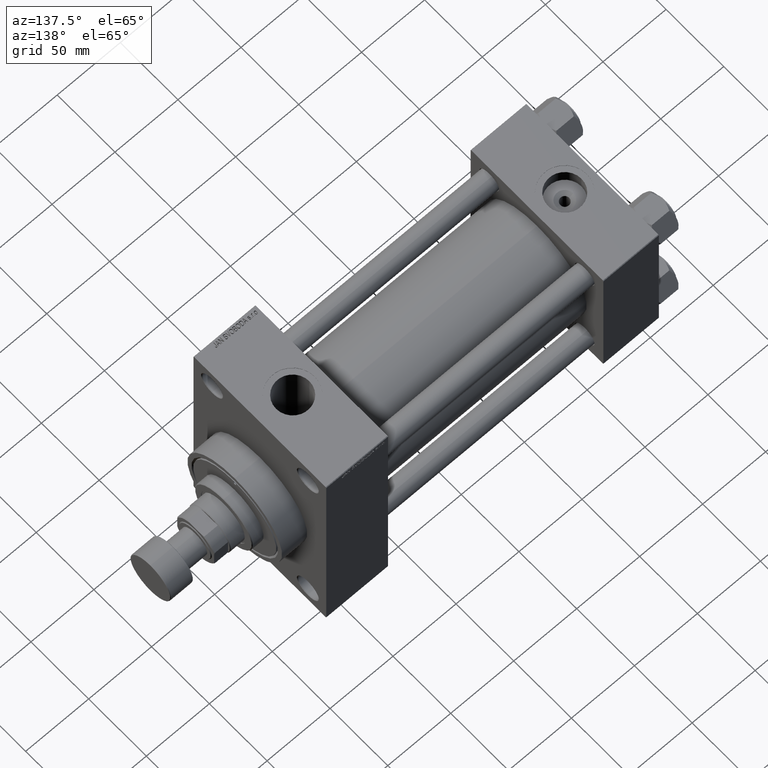
[diagram: clean part render]
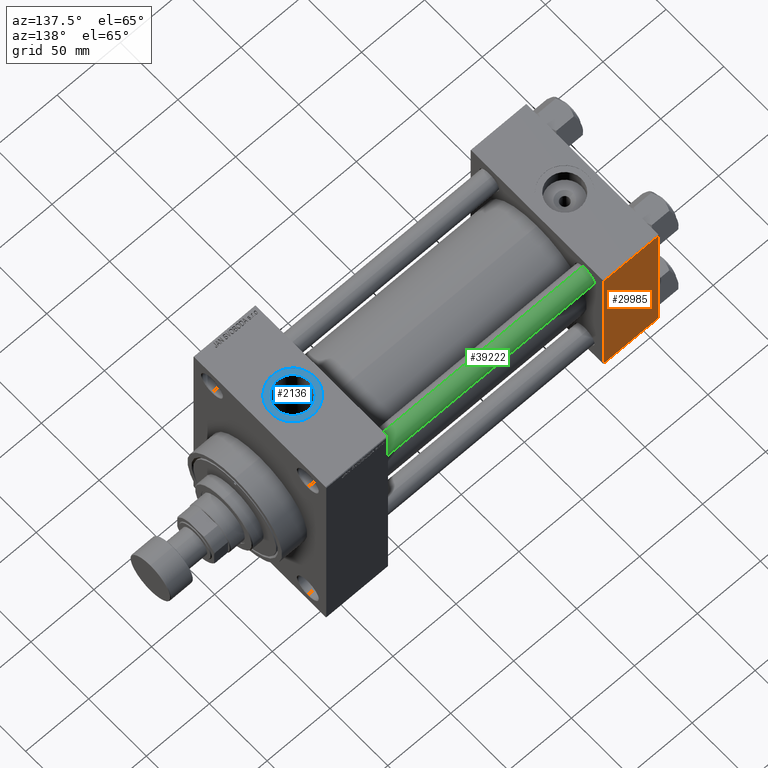
[diagram: same view with three faces highlighted in distinct colors, each labeled with its STEP entity id]
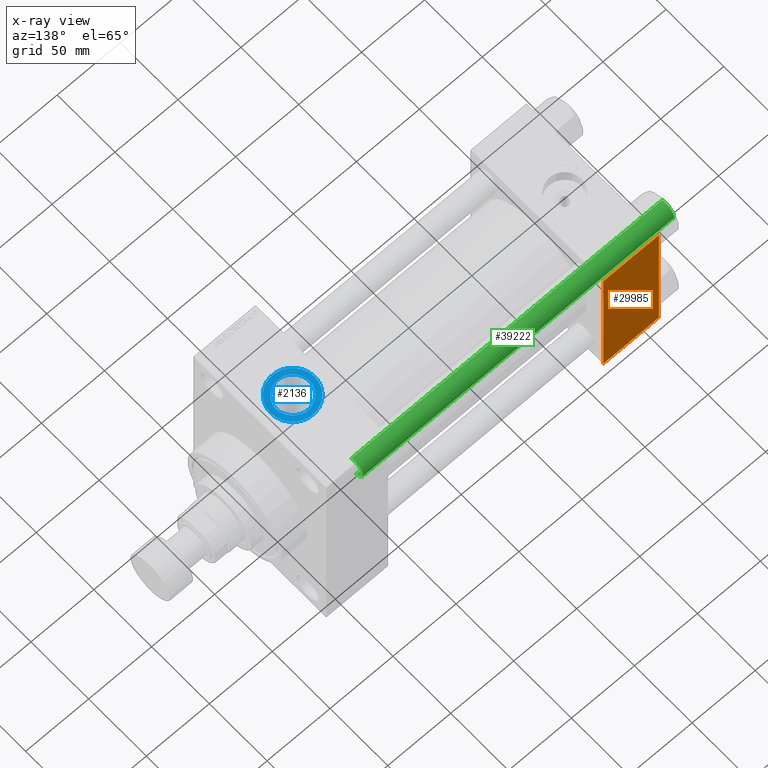
[diagram: x-ray of the same camera — body ghosted, the three highlighted faces saturated]
A machine part, auxiliary view with three faces highlighted in distinct colors.
The next image is the same camera in x-ray (body ghosted, the three faces saturated) — at least one of them is partly hidden behind the body in this view.
Their STEP definitions:

[orange] entity #29985 — the highlighted planar face has unit normal (0, 1, 0).
#2046 = CARTESIAN_POINT ( 'NONE',  ( 44.00000000000000000, 57.49999999999999289, 57.50000000000000711 ) ) ;
#3588 = VERTEX_POINT ( 'NONE', #25608 ) ;
#5001 = FACE_OUTER_BOUND ( 'NONE', #6183, .T. ) ;
#5596 = VECTOR ( 'NONE', #37071, 1000.000000000000000 ) ;
#6063 = EDGE_CURVE ( 'NONE', #24598, #18711, #32141, .T. ) ;
#6183 = EDGE_LOOP ( 'NONE', ( #45835, #47367, #31766, #36375 ) ) ;
#12938 = VECTOR ( 'NONE', #27477, 1000.000000000000000 ) ;
#12977 = CARTESIAN_POINT ( 'NONE',  ( 0.000000000000000000, 57.49999999999999289, 57.00000000000003553 ) ) ;
#13077 = DIRECTION ( 'NONE',  ( 0.000000000000000000, 0.000000000000000000, -1.000000000000000000 ) ) ;
#14054 = VECTOR ( 'NONE', #24882, 1000.000000000000000 ) ;
#15299 = CARTESIAN_POINT ( 'NONE',  ( 44.00000000000000000, 57.49999999999999289, 57.50000000000000711 ) ) ;
#15681 = EDGE_CURVE ( 'NONE', #45540, #24598, #30896, .T. ) ;
#16013 = CARTESIAN_POINT ( 'NONE',  ( 44.00000000000000000, 57.49999999999999289, 57.00000000000003553 ) ) ;
#18711 = VERTEX_POINT ( 'NONE', #47534 ) ;
#21702 = CARTESIAN_POINT ( 'NONE',  ( 0.000000000000000000, 57.49999999999999289, 57.50000000000000711 ) ) ;
#23586 = DIRECTION ( 'NONE',  ( 0.000000000000000000, -0.000000000000000000, 1.000000000000000000 ) ) ;
#24598 = VERTEX_POINT ( 'NONE', #16013 ) ;
#24882 = DIRECTION ( 'NONE',  ( -1.000000000000000000, 0.000000000000000000, 0.000000000000000000 ) ) ;
#25608 = CARTESIAN_POINT ( 'NONE',  ( 0.000000000000000000, 57.49999999999999289, -57.00000000000000711 ) ) ;
#27287 = PLANE ( 'NONE',  #28729 ) ;
#27477 = DIRECTION ( 'NONE',  ( 1.000000000000000000, 0.000000000000000000, 0.000000000000000000 ) ) ;
#28729 = AXIS2_PLACEMENT_3D ( 'NONE', #15299, #38234, #23586 ) ;
#29985 = ADVANCED_FACE ( 'NONE', ( #5001 ), #27287, .T. ) ;
#30896 = LINE ( 'NONE', #42354, #12938 ) ;
#31766 = ORIENTED_EDGE ( 'NONE', *, *, #43983, .F. ) ;
#32141 = LINE ( 'NONE', #2046, #32276 ) ;
#32215 = CARTESIAN_POINT ( 'NONE',  ( 44.00000000000000000, 57.49999999999999289, -57.00000000000000711 ) ) ;
#32276 = VECTOR ( 'NONE', #13077, 1000.000000000000000 ) ;
#35597 = EDGE_CURVE ( 'NONE', #18711, #3588, #47077, .T. ) ;
#36375 = ORIENTED_EDGE ( 'NONE', *, *, #15681, .T. ) ;
#36605 = LINE ( 'NONE', #21702, #5596 ) ;
#37071 = DIRECTION ( 'NONE',  ( 0.000000000000000000, 0.000000000000000000, -1.000000000000000000 ) ) ;
#38234 = DIRECTION ( 'NONE',  ( -0.000000000000000000, 1.000000000000000000, 0.000000000000000000 ) ) ;
#42354 = CARTESIAN_POINT ( 'NONE',  ( 44.00000000000000000, 57.49999999999999289, 57.00000000000003553 ) ) ;
#43983 = EDGE_CURVE ( 'NONE', #45540, #3588, #36605, .T. ) ;
#45540 = VERTEX_POINT ( 'NONE', #12977 ) ;
#45835 = ORIENTED_EDGE ( 'NONE', *, *, #6063, .T. ) ;
#47077 = LINE ( 'NONE', #32215, #14054 ) ;
#47367 = ORIENTED_EDGE ( 'NONE', *, *, #35597, .T. ) ;
#47534 = CARTESIAN_POINT ( 'NONE',  ( 44.00000000000000000, 57.49999999999999289, -57.00000000000000711 ) ) ;

[blue] entity #2136 — the highlighted planar face has unit normal (0, 0, 1).
#388 = ORIENTED_EDGE ( 'NONE', *, *, #24571, .T. ) ;
#927 = CARTESIAN_POINT ( 'NONE',  ( 220.5000000000000568, -8.717745516303449987E-15, 89.79999999999998295 ) ) ;
#973 = FACE_OUTER_BOUND ( 'NONE', #4264, .T. ) ;
#2136 = ADVANCED_FACE ( 'NONE', ( #11293, #973 ), #37897, .T. ) ;
#2818 = AXIS2_PLACEMENT_3D ( 'NONE', #19716, #35111, #31225 ) ;
#4264 = EDGE_LOOP ( 'NONE', ( #15349, #388 ) ) ;
#7847 = CARTESIAN_POINT ( 'NONE',  ( 238.0000000000000284, -1.086087741481131350E-14, 89.79999999999998295 ) ) ;
#8358 = VERTEX_POINT ( 'NONE', #45506 ) ;
#10519 = CIRCLE ( 'NONE', #47196, 17.49999999999998934 ) ;
#11217 = DIRECTION ( 'NONE',  ( 1.000000000000000000, 0.000000000000000000, 0.000000000000000000 ) ) ;
#11293 = FACE_BOUND ( 'NONE', #11704, .T. ) ;
#11369 = DIRECTION ( 'NONE',  ( 0.000000000000000000, 0.000000000000000000, 1.000000000000000000 ) ) ;
#11682 = EDGE_CURVE ( 'NONE', #8358, #42528, #15936, .T. ) ;
#11704 = EDGE_LOOP ( 'NONE', ( #17933, #17372 ) ) ;
#12247 = DIRECTION ( 'NONE',  ( 1.000000000000000000, 0.000000000000000000, -0.000000000000000000 ) ) ;
#12343 = CARTESIAN_POINT ( 'NONE',  ( 238.0000000000000284, -1.086087741481131350E-14, 89.79999999999998295 ) ) ;
#13804 = AXIS2_PLACEMENT_3D ( 'NONE', #12343, #11369, #27275 ) ;
#14156 = CARTESIAN_POINT ( 'NONE',  ( 238.0000000000000568, -1.086087741481131350E-14, 89.79999999999998295 ) ) ;
#14495 = CARTESIAN_POINT ( 'NONE',  ( 224.7800000000000580, -1.086087741481131350E-14, 89.79999999999998295 ) ) ;
#15349 = ORIENTED_EDGE ( 'NONE', *, *, #20822, .T. ) ;
#15936 = CIRCLE ( 'NONE', #46331, 13.22000000000000952 ) ;
#16907 = CIRCLE ( 'NONE', #13804, 17.49999999999998934 ) ;
#17372 = ORIENTED_EDGE ( 'NONE', *, *, #11682, .T. ) ;
#17933 = ORIENTED_EDGE ( 'NONE', *, *, #47105, .T. ) ;
#19716 = CARTESIAN_POINT ( 'NONE',  ( 238.0000000000000568, -1.086087741481131350E-14, 89.79999999999998295 ) ) ;
#20213 = VERTEX_POINT ( 'NONE', #30953 ) ;
#20822 = EDGE_CURVE ( 'NONE', #20213, #27780, #10519, .T. ) ;
#22217 = DIRECTION ( 'NONE',  ( 0.000000000000000000, 0.000000000000000000, 1.000000000000000000 ) ) ;
#24571 = EDGE_CURVE ( 'NONE', #27780, #20213, #16907, .T. ) ;
#27275 = DIRECTION ( 'NONE',  ( 1.000000000000000000, 0.000000000000000000, 0.000000000000000000 ) ) ;
#27780 = VERTEX_POINT ( 'NONE', #927 ) ;
#29023 = AXIS2_PLACEMENT_3D ( 'NONE', #7847, #30845, #12247 ) ;
#29086 = DIRECTION ( 'NONE',  ( -0.000000000000000000, -0.000000000000000000, -1.000000000000000000 ) ) ;
#30845 = DIRECTION ( 'NONE',  ( 0.000000000000000000, 0.000000000000000000, 1.000000000000000000 ) ) ;
#30953 = CARTESIAN_POINT ( 'NONE',  ( 255.5000000000000000, -1.086087741481131350E-14, 89.79999999999998295 ) ) ;
#31225 = DIRECTION ( 'NONE',  ( 1.000000000000000000, 0.000000000000000000, 0.000000000000000000 ) ) ;
#35111 = DIRECTION ( 'NONE',  ( -0.000000000000000000, -0.000000000000000000, -1.000000000000000000 ) ) ;
#37897 = PLANE ( 'NONE',  #29023 ) ;
#37962 = CIRCLE ( 'NONE', #2818, 13.22000000000000952 ) ;
#40279 = DIRECTION ( 'NONE',  ( 1.000000000000000000, 0.000000000000000000, 0.000000000000000000 ) ) ;
#42528 = VERTEX_POINT ( 'NONE', #14495 ) ;
#45506 = CARTESIAN_POINT ( 'NONE',  ( 251.2200000000000557, -9.241894346338516295E-15, 89.79999999999998295 ) ) ;
#46331 = AXIS2_PLACEMENT_3D ( 'NONE', #14156, #29086, #40279 ) ;
#47105 = EDGE_CURVE ( 'NONE', #42528, #8358, #37962, .T. ) ;
#47196 = AXIS2_PLACEMENT_3D ( 'NONE', #48331, #22217, #11217 ) ;
#48331 = CARTESIAN_POINT ( 'NONE',  ( 238.0000000000000284, -1.086087741481131350E-14, 89.79999999999998295 ) ) ;

[green] entity #39222 — the highlighted cylindrical surface (edge-blend (fillet) strip) has radius 8 mm, axis along (-1, -0, 0).
#912 = CYLINDRICAL_SURFACE ( 'NONE', #7143, 8.000000000000000000 ) ;
#1159 = AXIS2_PLACEMENT_3D ( 'NONE', #7071, #26390, #21992 ) ;
#1273 = CARTESIAN_POINT ( 'NONE',  ( -8.000000000000000000, 0.000000000000000000, 248.0000000000000000 ) ) ;
#1340 = VECTOR ( 'NONE', #45040, 1000.000000000000000 ) ;
#1794 = VERTEX_POINT ( 'NONE', #6763 ) ;
#6763 = CARTESIAN_POINT ( 'NONE',  ( 8.000000000000000000, 9.797174393178825657E-16, 0.4999999999999726885 ) ) ;
#7071 = CARTESIAN_POINT ( 'NONE',  ( 0.000000000000000000, 0.000000000000000000, 0.4999999999999726885 ) ) ;
#7143 = AXIS2_PLACEMENT_3D ( 'NONE', #31028, #12443, #15622 ) ;
#10549 = CIRCLE ( 'NONE', #1159, 8.000000000000000000 ) ;
#10606 = DIRECTION ( 'NONE',  ( 1.000000000000000000, 0.000000000000000000, 0.000000000000000000 ) ) ;
#10635 = CARTESIAN_POINT ( 'NONE',  ( 8.000000000000000000, 9.797174393178825657E-16, 247.5000000000000284 ) ) ;
#12443 = DIRECTION ( 'NONE',  ( -0.000000000000000000, -0.000000000000000000, -1.000000000000000000 ) ) ;
#15596 = CIRCLE ( 'NONE', #26533, 8.000000000000000000 ) ;
#15622 = DIRECTION ( 'NONE',  ( -1.000000000000000000, 0.000000000000000000, 0.000000000000000000 ) ) ;
#16335 = ORIENTED_EDGE ( 'NONE', *, *, #21771, .T. ) ;
#19406 = ORIENTED_EDGE ( 'NONE', *, *, #21367, .F. ) ;
#21367 = EDGE_CURVE ( 'NONE', #31123, #42975, #34785, .T. ) ;
#21392 = CARTESIAN_POINT ( 'NONE',  ( -8.000000000000000000, 0.000000000000000000, 0.4999999999999726885 ) ) ;
#21508 = VECTOR ( 'NONE', #31145, 1000.000000000000000 ) ;
#21771 = EDGE_CURVE ( 'NONE', #1794, #42975, #10549, .T. ) ;
#21992 = DIRECTION ( 'NONE',  ( 1.000000000000000000, 0.000000000000000000, 0.000000000000000000 ) ) ;
#22421 = VERTEX_POINT ( 'NONE', #10635 ) ;
#25532 = DIRECTION ( 'NONE',  ( 0.000000000000000000, 0.000000000000000000, -1.000000000000000000 ) ) ;
#26390 = DIRECTION ( 'NONE',  ( -0.000000000000000000, -0.000000000000000000, 1.000000000000000000 ) ) ;
#26533 = AXIS2_PLACEMENT_3D ( 'NONE', #43380, #25532, #10606 ) ;
#26951 = EDGE_CURVE ( 'NONE', #22421, #1794, #33350, .T. ) ;
#29616 = EDGE_LOOP ( 'NONE', ( #48015, #41949, #16335, #19406 ) ) ;
#31028 = CARTESIAN_POINT ( 'NONE',  ( 0.000000000000000000, 0.000000000000000000, 248.0000000000000000 ) ) ;
#31123 = VERTEX_POINT ( 'NONE', #44739 ) ;
#31145 = DIRECTION ( 'NONE',  ( -0.000000000000000000, -0.000000000000000000, -1.000000000000000000 ) ) ;
#33350 = LINE ( 'NONE', #33812, #1340 ) ;
#33812 = CARTESIAN_POINT ( 'NONE',  ( 8.000000000000000000, 9.797174393178825657E-16, 248.0000000000000000 ) ) ;
#34785 = LINE ( 'NONE', #1273, #21508 ) ;
#34924 = EDGE_CURVE ( 'NONE', #31123, #22421, #15596, .T. ) ;
#39222 = ADVANCED_FACE ( 'NONE', ( #41746 ), #912, .T. ) ;
#41746 = FACE_OUTER_BOUND ( 'NONE', #29616, .T. ) ;
#41949 = ORIENTED_EDGE ( 'NONE', *, *, #26951, .T. ) ;
#42975 = VERTEX_POINT ( 'NONE', #21392 ) ;
#43380 = CARTESIAN_POINT ( 'NONE',  ( 0.000000000000000000, 0.000000000000000000, 247.5000000000000284 ) ) ;
#44739 = CARTESIAN_POINT ( 'NONE',  ( -8.000000000000000000, 0.000000000000000000, 247.5000000000000284 ) ) ;
#45040 = DIRECTION ( 'NONE',  ( -0.000000000000000000, -0.000000000000000000, -1.000000000000000000 ) ) ;
#48015 = ORIENTED_EDGE ( 'NONE', *, *, #34924, .T. ) ;